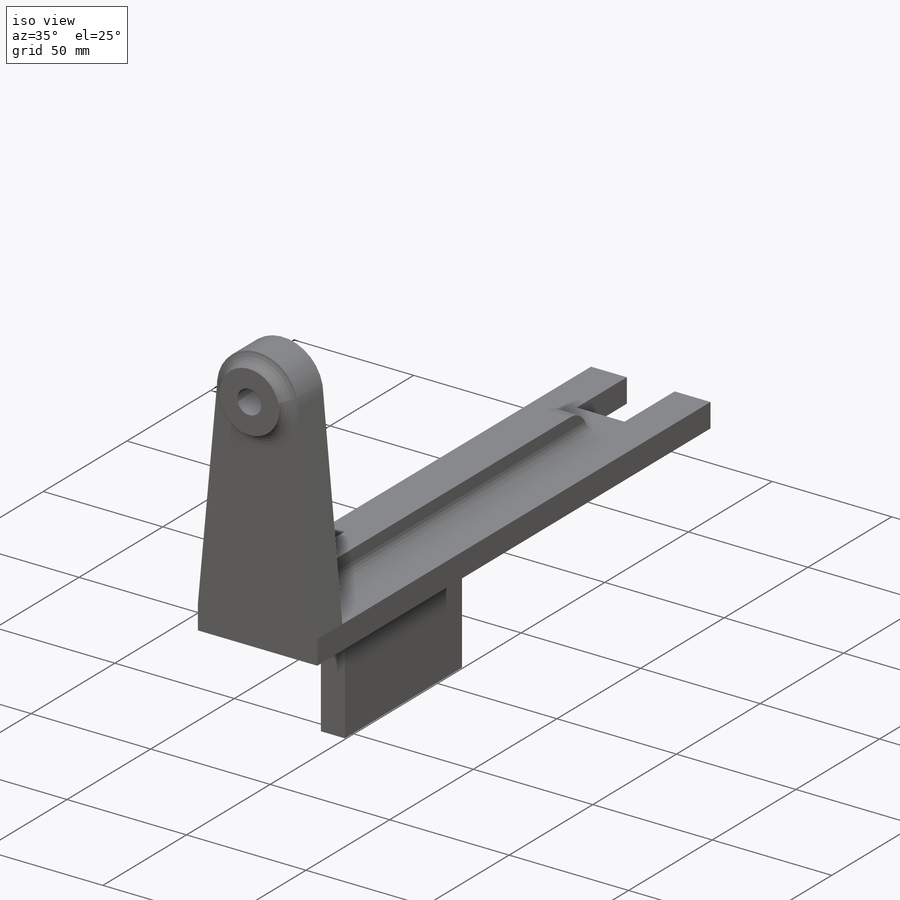
[diagram: iso view]
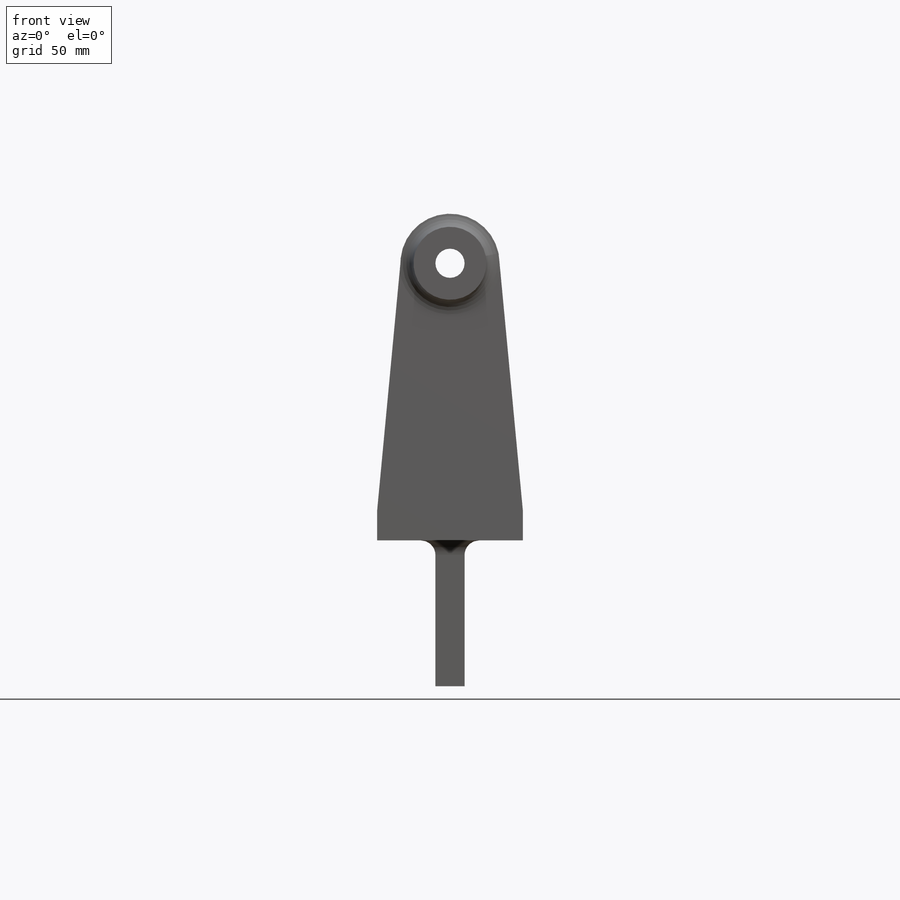
[diagram: front view]
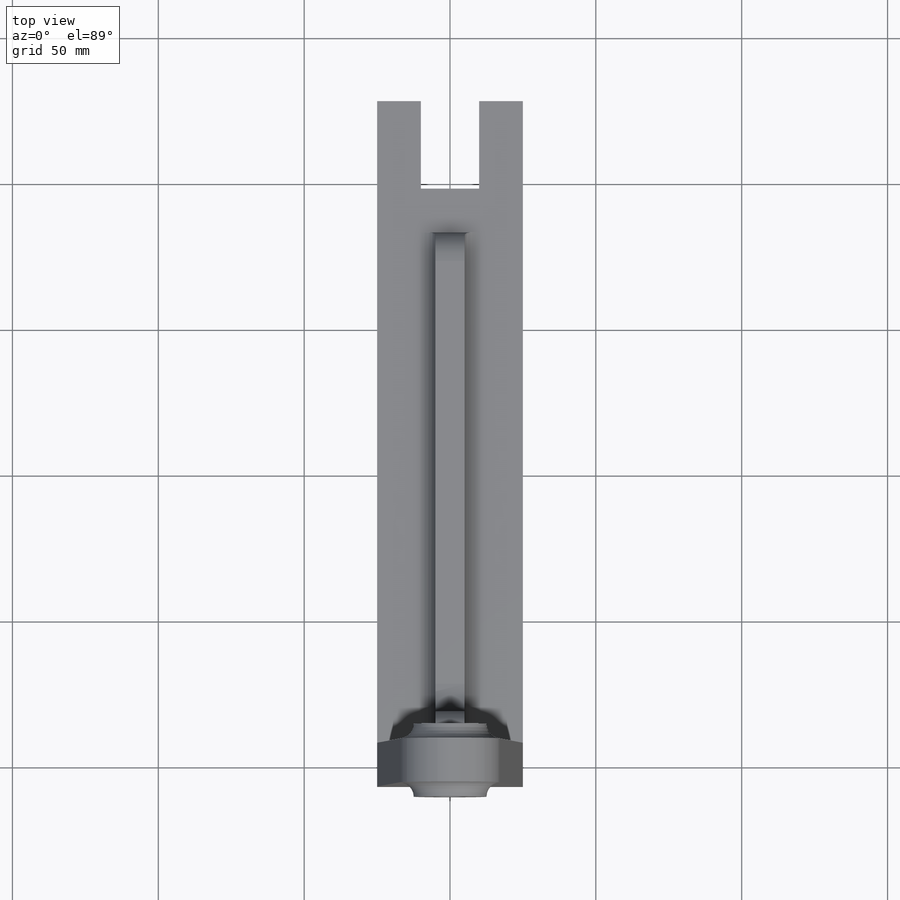
[diagram: top view]
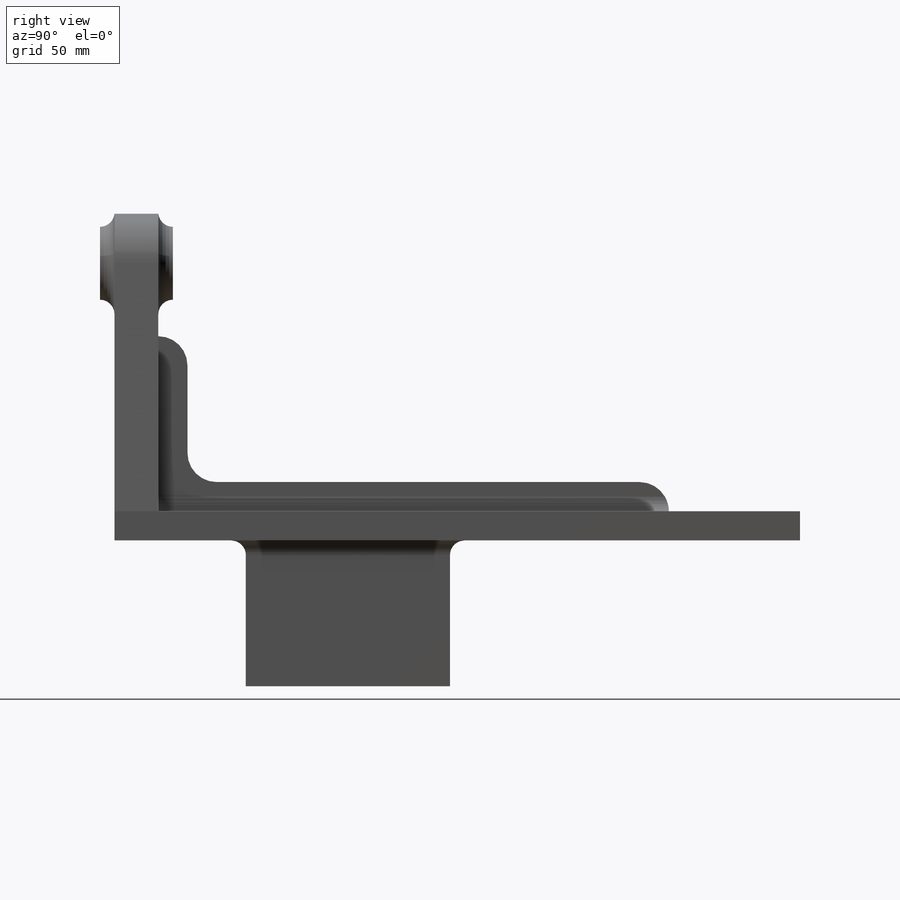
[diagram: right view]
SOLIDWORKS PART (.sldprt)
format: sldprt  version: not decoded by parser v0  size: 595,456 bytes
history: native  units: mm
features: sketch x10, extrude x8, fillet x8, cut_extrude x2, material x1 (+12 scaffold rows collapsed)
feature tree (41):
  scaffold x12  (default folders/planes/origin — collapsed)
  material  "Material <not specified>"
  sketch  "Sketch1"  dims[c1.D1=~13.498786mm c1.D3=17.0mm c1.D4=17.0mm c2.D1=~29.793064mm c2.D5=17.0mm c3.D1=50.0mm c3.D2=10.0mm c3.D4=95.0mm c3.D5=25.0mm c3.D6=25.0mm c4.D1=10.0mm c4.D2=50.0mm c4.D3=25.0mm c4.D4=25.0mm c4.D5=0.0mm c4.D6=~3.535158mm c5.D5=~69.075327mm c5.D1=10.0mm c5.D2=50.0mm c5.D3=25.0mm c5.D4=95.0mm c5.D6=0.0mm]
  extrude  "Boss-Extrude2"  Depth=15mm
  sketch  "Sketch4"  dims[D1=~8.844855mm]
  extrude  "Boss-Extrude3"  Depth=5mm
  fillet  "Fillet1"  Radius=5mm
  sketch  "Sketch5"  dims[D1=~13.859681mm]
  extrude  "Boss-Extrude4"  Depth=5mm
  fillet  "Fillet4"  Radius=5mm
  sketch  "Sketch6"  dims[D1=~6.526419mm]
  cut_extrude  "Cut-Extrude1"  [1 undecoded]
  sketch  "Sketch7"  dims[c1.D1=90.0deg c2.D1=235.0mm]
  extrude  "Boss-Extrude5"  Depth=10mm
  sketch  "Sketch9"  dims[D1=70.0mm D2=10.0mm D3=45.0mm D4=20.0mm]
  extrude  "Boss-Extrude6"  Depth=50mm
  fillet  "Fillet5"  Radius=5mm
  fillet  "Fillet6"  Radius=5mm
  sketch  "Sketch10"  dims[D1=55.0mm D2=10.0mm D3=20.0mm]
  extrude  "Boss-Extrude7"  Depth=10mm
  sketch  "Sketch11"  dims[D1=10.0mm D2=10.0mm]
  extrude  "Boss-Extrude8"  Depth=10mm
  sketch  "Sketch13"  dims[c1.D3=10.0mm c1.D1=40.0mm c1.D2=10.0mm c1.D4=10.0mm c2.D1=40.0mm c2.D5=40.0mm]
  extrude  "Boss-Extrude9"  Depth=10mm
  fillet  "Fillet12"  Radius=10mm
  fillet  "Fillet13"  Radius=5mm
  fillet  "Fillet14"  Radius=5mm
  fillet  "Fillet15"  Radius=5mm
  sketch  "Sketch14"  dims[D1=20.0mm D2=15.0mm]
  cut_extrude  "Cut-Extrude2"  Depth=30mm
decode coverage: 27 of 28 modeling features carry decoded parameters
note: ~ marks probable driven/reference dimensions
note: 1 parameter value undecoded
note: suppression state not decoded; provenance and decode notes live in map.json
